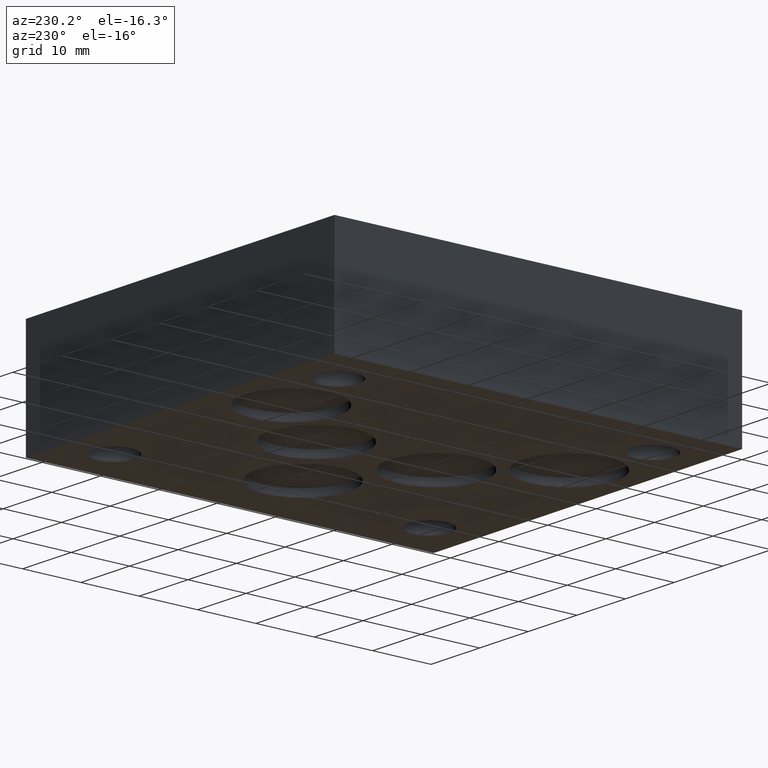
[diagram: clean part render]
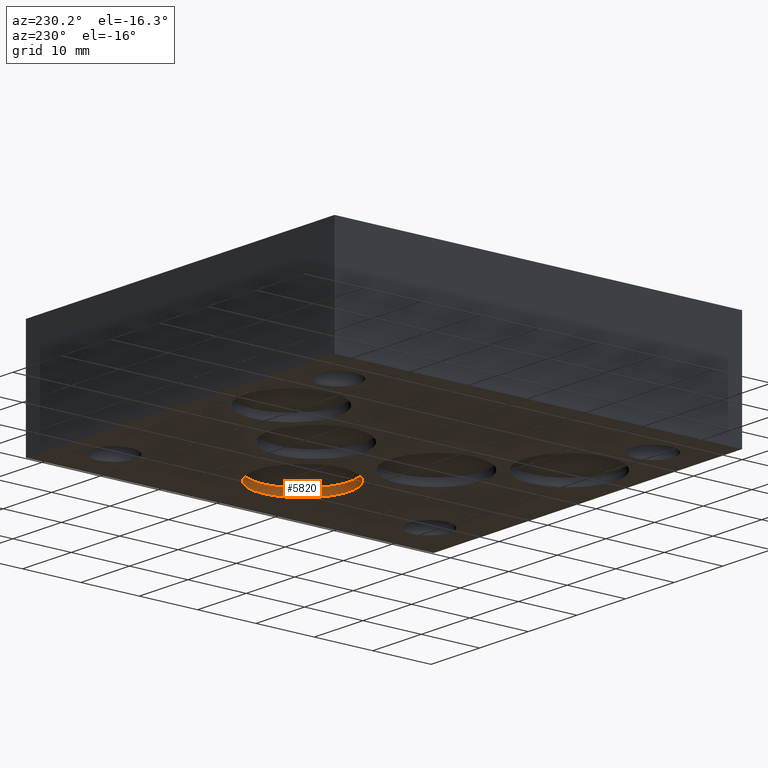
[diagram: same view with one face highlighted and labeled with its STEP entity id]
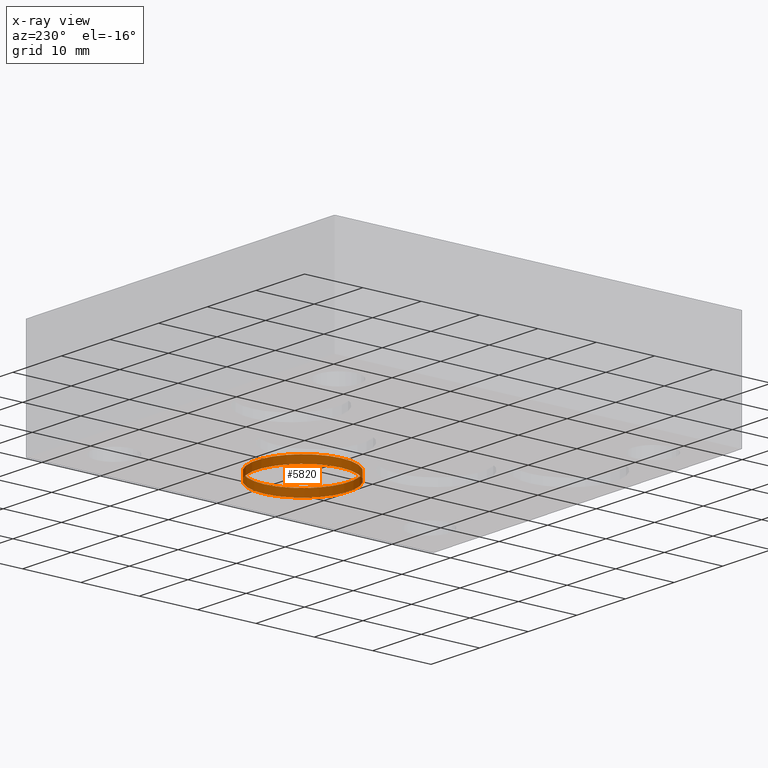
[diagram: x-ray of the same camera — body ghosted, the highlighted face saturated]
A machine part, auxiliary view. The second image highlights one B-rep face of the part: STEP entity #5820.
The next image is the same camera in x-ray: the body ghosted, the highlighted face saturated — about 0% of this face is hidden behind the body in this view.
In plain terms, the highlighted cylindrical surface (bore or boss wall) has radius 7.9375 mm, axis along (0, 0, -1).
Its self-contained STEP definition (entity closure, byte-faithful):
#22=CIRCLE('',#6060,7.9375);
#23=CIRCLE('',#6061,7.9375);
#24=CIRCLE('',#6062,7.9375);
#25=CIRCLE('',#6063,7.9375);
#48=CYLINDRICAL_SURFACE('',#6059,7.9375);
#573=FACE_OUTER_BOUND('',#886,.T.);
#886=EDGE_LOOP('',(#5120,#5121,#5122,#5123,#5124,#5125));
#1516=LINE('',#9706,#2132);
#2132=VECTOR('',#7126,7.9375);
#2799=VERTEX_POINT('',#9701);
#2800=VERTEX_POINT('',#9702);
#2801=VERTEX_POINT('',#9705);
#2802=VERTEX_POINT('',#9707);
#3582=EDGE_CURVE('',#2799,#2800,#22,.T.);
#3583=EDGE_CURVE('',#2800,#2799,#23,.T.);
#3584=EDGE_CURVE('',#2800,#2801,#1516,.T.);
#3585=EDGE_CURVE('',#2802,#2801,#24,.T.);
#3586=EDGE_CURVE('',#2801,#2802,#25,.T.);
#5120=ORIENTED_EDGE('',*,*,#3582,.F.);
#5121=ORIENTED_EDGE('',*,*,#3583,.F.);
#5122=ORIENTED_EDGE('',*,*,#3584,.T.);
#5123=ORIENTED_EDGE('',*,*,#3585,.F.);
#5124=ORIENTED_EDGE('',*,*,#3586,.F.);
#5125=ORIENTED_EDGE('',*,*,#3584,.F.);
#5820=ADVANCED_FACE('',(#573),#48,.F.);
#6059=AXIS2_PLACEMENT_3D('',#9700,#7120,#7121);
#6060=AXIS2_PLACEMENT_3D('',#9703,#7122,#7123);
#6061=AXIS2_PLACEMENT_3D('',#9704,#7124,#7125);
#6062=AXIS2_PLACEMENT_3D('',#9708,#7127,#7128);
#6063=AXIS2_PLACEMENT_3D('',#9709,#7129,#7130);
#7120=DIRECTION('center_axis',(0.,0.,-1.));
#7121=DIRECTION('ref_axis',(1.,0.,0.));
#7122=DIRECTION('center_axis',(0.,0.,1.));
#7123=DIRECTION('ref_axis',(1.,0.,0.));
#7124=DIRECTION('center_axis',(0.,0.,1.));
#7125=DIRECTION('ref_axis',(1.,0.,0.));
#7126=DIRECTION('',(0.,0.,1.));
#7127=DIRECTION('center_axis',(0.,0.,-1.));
#7128=DIRECTION('ref_axis',(1.,0.,0.));
#7129=DIRECTION('center_axis',(0.,0.,-1.));
#7130=DIRECTION('ref_axis',(1.,0.,0.));
#9700=CARTESIAN_POINT('Origin',(48.4632,34.925,0.6604));
#9701=CARTESIAN_POINT('',(56.4007,34.925,0.));
#9702=CARTESIAN_POINT('',(40.5257,34.925,0.));
#9703=CARTESIAN_POINT('Origin',(48.4632,34.925,0.));
#9704=CARTESIAN_POINT('Origin',(48.4632,34.925,0.));
#9705=CARTESIAN_POINT('',(40.5257,34.925,1.3208));
#9706=CARTESIAN_POINT('',(40.5257,34.925,0.6604));
#9707=CARTESIAN_POINT('',(56.4007,34.925,1.3208));
#9708=CARTESIAN_POINT('Origin',(48.4632,34.925,1.3208));
#9709=CARTESIAN_POINT('Origin',(48.4632,34.925,1.3208));